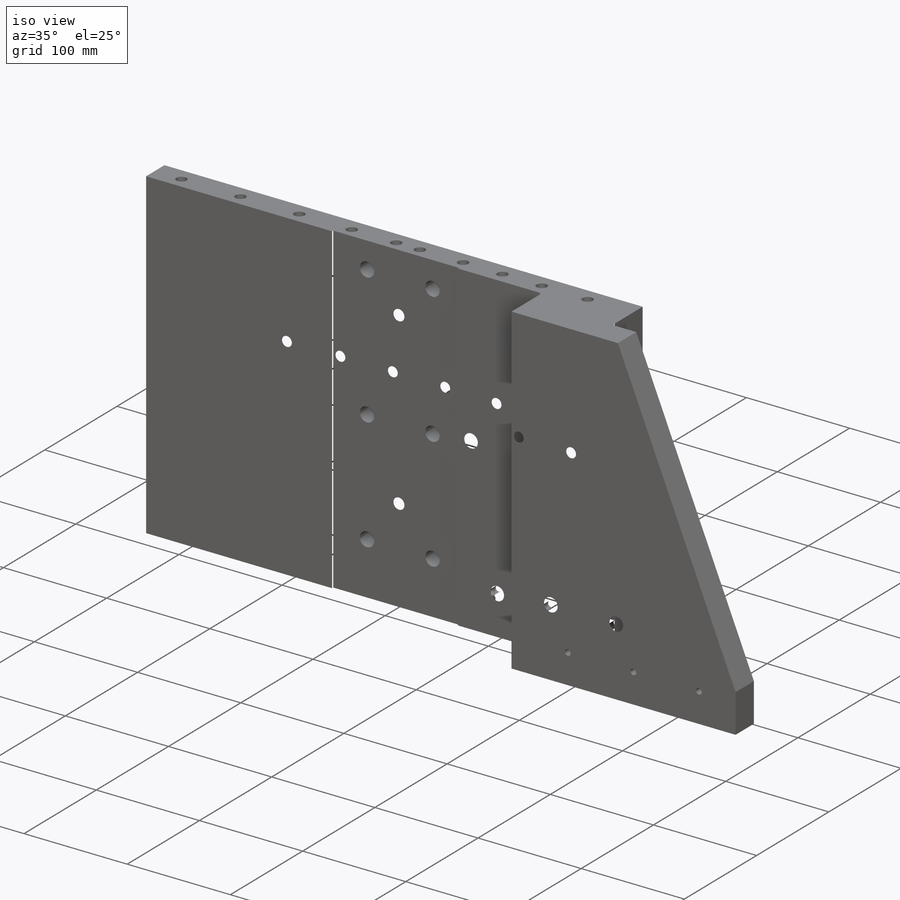
[diagram: iso view]
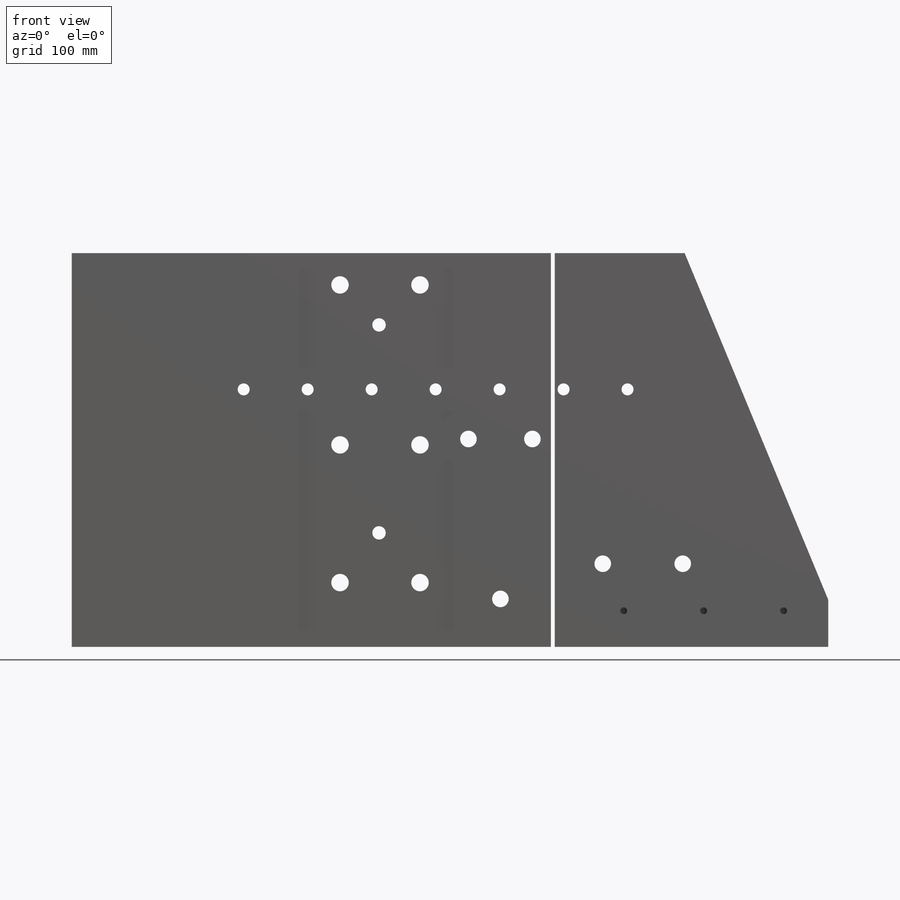
[diagram: front view]
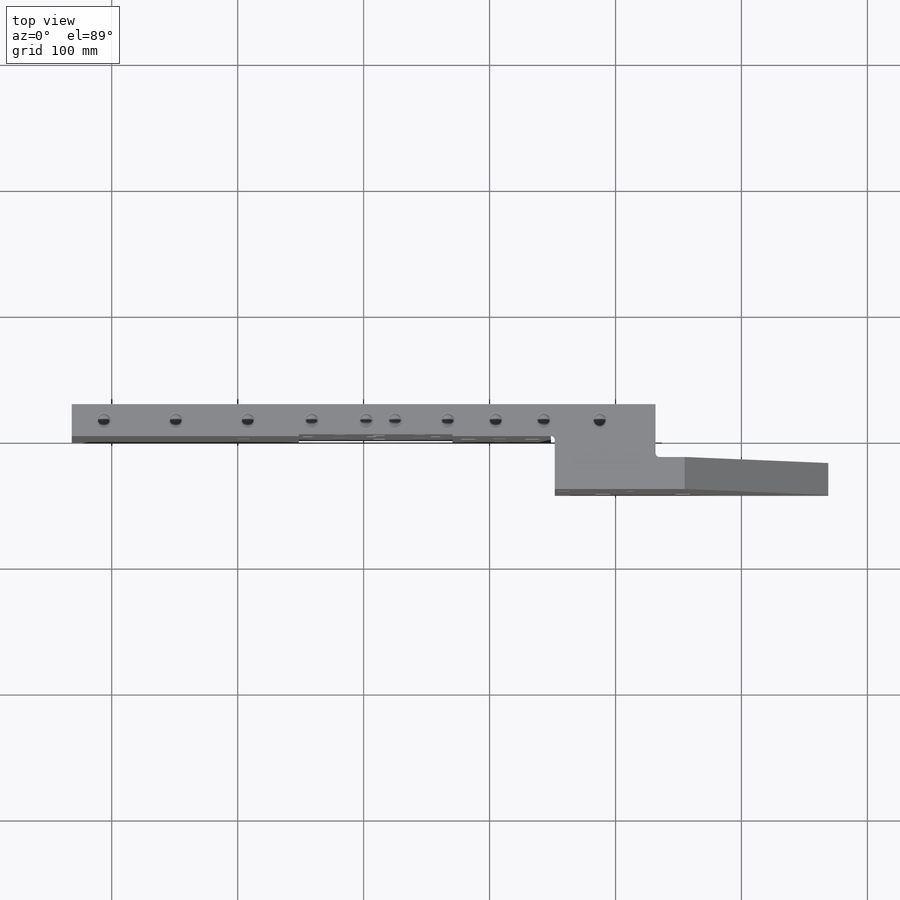
[diagram: top view]
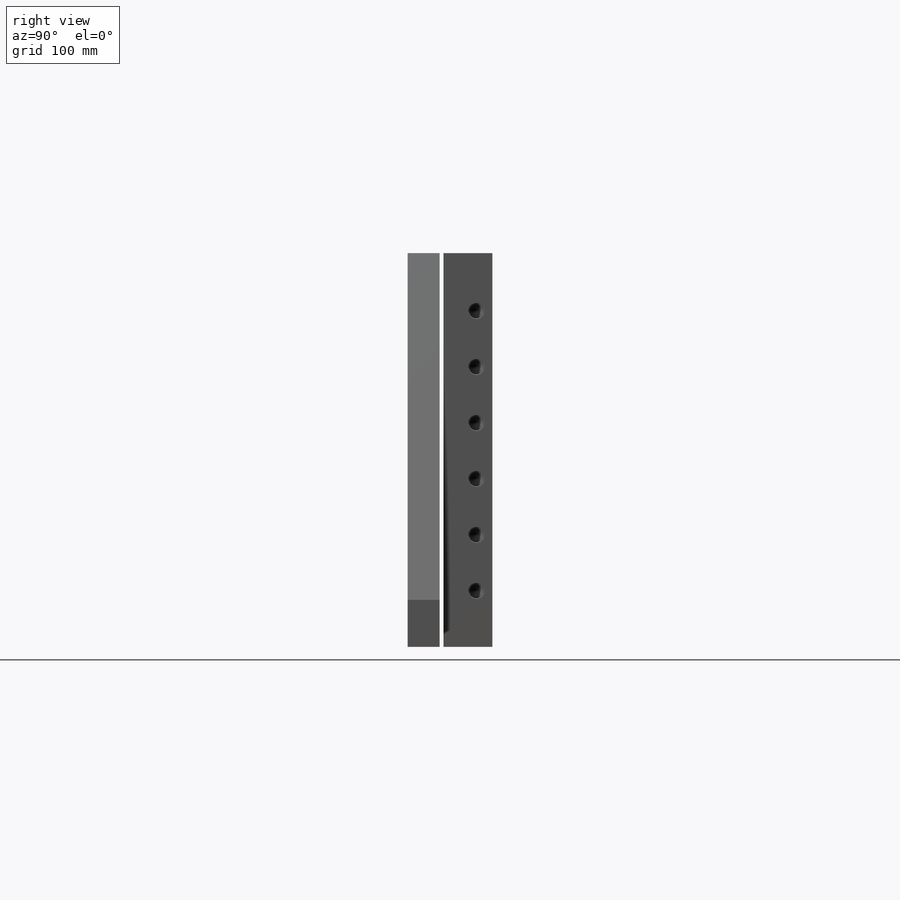
[diagram: right view]
SOLIDWORKS PART (.sldprt)
format: sldprt  version: not decoded by parser v0  size: 1,246,720 bytes
history: native  units: mm
features: sketch x32, hole x14, cut_extrude x3, material x1, extrude x1, chamfer x1, fillet x1 + 1 further entry (+14 scaffold rows collapsed)
feature tree (68):
  scaffold x14  (default folders/planes/origin — collapsed)
  material  "6061-T6 Al"
  "Origin"  ID=-1
  sketch  "Sketch1"  dims[c1.D1=25.4mm c1.D2=463.55mm c1.D3=~11.680851mm c2.D1=25.4mm c2.D2=463.55mm c2.D3=80.01mm c2.D4=217.17mm c2.D5=67.31mm c2.D6=25.4mm]
  extrude  "Extrude1"  Depth=312.674mm
  sketch  "Sketch2"  dims[c1.D1=37.338mm c1.D2=312.674mm c2.D2=157.5deg]
  cut_extrude  "Extrude2"  [1 undecoded]
  hole  "Bottom Holes 3/8-16 Tapped Hole1"  Diameter=7.9375mm Depth=31.75mm
  sketch  "Sketch4"  dims[c1.D1=19.05mm c1.D2=58.42mm c1.D3=58.42mm c1.D4=50.8mm c1.D5=58.42mm c1.D6=58.42mm c1.D7=58.42mm c1.D8=76.2mm c1.D9=63.5mm c1.D10=63.5mm c2.D3=25.4mm c2.D5=88.9mm c2.D2=139.7mm c2.D4=182.88mm c2.D6=205.74mm c2.D7=266.7mm c2.D8=323.85mm c2.D11=381.0mm c2.D12=438.15mm]
  sketch  "Sketch3"  dims[hole-wizard template sketch: 27 standard entries collapsed; hole parameters kept: c8.Tap Drill Depth=31.75mm c8.Thread Major Dia.=9.525mm c8.Thread Depth=25.4mm c8.Near C'Sink Dia.=10.795mm c8.D6=~4.399409mm c8.Near C'Sink Angle=120.0deg c8.D7=~14.816244mm c8.Drill Angle=118.0deg]
  hole  "Top Holes 3/8-16 Tapped Hole2"  Diameter=7.9375mm Depth=31.75mm
  sketch  "Sketch6"  dims[c1.D1=44.45mm c1.D2=88.9mm c1.D3=165.1mm c1.D4=207.01mm c1.D5=230.632mm c1.D6=229.87mm c1.D7=273.05mm c1.D8=323.85mm c1.D9=381.0mm c2.D5=438.15mm c2.D10=127.0mm]
  sketch  "Sketch5"  dims[hole-wizard template sketch: 27 standard entries collapsed; hole parameters kept: c8.Tap Drill Depth=31.75mm c8.Thread Major Dia.=9.525mm c8.Thread Depth=25.4mm c8.Near C'Sink Dia.=11.684mm c8.D6=~4.399409mm c8.Near C'Sink Angle=120.0deg c8.D7=~14.816244mm c8.Drill Angle=118.0deg]
  hole  "Top Vent Holes 7/32 (0.21875) Diameter Hole1"  Diameter=5.55625mm Depth=12.7mm
  sketch  "Sketch8"  dims[c1.D1=28.575mm c1.D2=28.575mm c1.D3=~26.446296mm c1.D4=44.45mm c1.D5=88.9mm c1.D6=165.1mm c1.D7=207.01mm c1.D8=273.05mm c1.D9=323.85mm c1.D10=381.0mm c2.D3=438.15mm c2.D11=19.05mm c2.D12=58.42mm c2.D13=58.42mm c2.D14=50.8mm c2.D15=58.42mm c2.D16=58.42mm c2.D17=58.42mm c2.D18=76.2mm c2.D2=28.575mm c3.D11=25.4mm c3.D12=88.9mm c3.D13=139.7mm c3.D14=182.88mm c3.D15=205.74mm c3.D16=266.7mm c3.D17=323.85mm c3.D18=438.15mm c3.D19=381.0mm c3.D20=127.0mm c3.D21=229.87mm]
  sketch  "Sketch7"  dims[hole-wizard template sketch: 47 standard entries collapsed; hole parameters kept: c15.Hole Depth=12.7mm c15.D3=~14.816244mm c15.Drill Angle=118.0deg]
  hole  " leg vent holes 7/32 (0.21875) Diameter Hole2"  Diameter=5.55625mm Depth=12.7mm
  sketch  "Sketch10"  dims[D1=28.575mm D2=63.5mm D3=63.5mm D4=54.61mm]
  sketch  "Sketch9"  dims[hole-wizard template sketch: 47 standard entries collapsed; hole parameters kept: c15.Hole Depth=12.7mm c15.D3=~14.816244mm c15.Drill Angle=118.0deg]
  hole  "door tapped holes 3/8-16 Tapped Hole3"  Diameter=10.0838mm Depth=31.75mm
  sketch  "Sketch12"  dims[c1.D1=12.7mm c1.D2=44.45mm c1.D3=88.9mm c1.D4=152.4mm c1.D5=215.9mm c1.D6=266.7mm c1.D7=177.8mm c2.D2=44.45mm c2.D3=266.7mm c2.D4=44.45mm c2.D5=44.45mm c2.D6=44.45mm c2.D7=44.45mm]
  sketch  "Sketch11"  dims[hole-wizard template sketch: 27 standard entries collapsed; hole parameters kept: c8.Tap Drill Depth=31.75mm c8.Thread Major Dia.=~11.68908mm c8.Thread Depth=25.4mm c8.Near C'Sink Dia.=12.7mm c8.D6=~4.399409mm c8.Near C'Sink Angle=120.0deg c8.D7=~14.816244mm c8.Drill Angle=118.0deg]
  hole  "door vent holes 7/32 (0.21875) Diameter Hole3"  Diameter=5.55625mm Depth=7.6581mm
  sketch  "Sketch15"  dims[c1.D1=28.575mm c1.D2=31.75mm c1.D3=88.9mm c1.D4=152.4mm c1.D5=215.9mm c1.D6=266.7mm c2.D2=44.45mm c2.D3=88.9mm c2.D4=133.35mm c2.D5=177.8mm c2.D6=222.25mm c2.D7=266.7mm]
  sketch  "Sketch14"  dims[hole-wizard template sketch: 60 standard entries collapsed; hole parameters kept: c18.Thru Hole Depth=7.6581mm]
  sketch  "Sketch13"  dims[D2=6.35mm D5=~4.77139mm D1=44.45mm D3=50.8mm D4=5.08mm]
  cut_extrude  " dowel slot Extrude3"  Depth=19.05mm
  chamfer  "dowel slot Chamfer1"  Distance=2.286mm Angle=45deg
  hole  "dowel hole 3/8 (0.375) Diameter Hole1"  Diameter=9.54278mm Depth=19.05mm
  sketch  "Sketch17"  dims[D1=50.8mm D2=12.7mm]
  sketch  "Sketch16"  dims[hole-wizard template sketch: 45 standard entries collapsed; hole parameters kept: c14.Drill Angle=90.0deg]
  hole  "Bracket holes CBORE for 1/2 Socket Head Cap Screw1"  Diameter=13.89126mm Depth=67.31mm
  sketch  "Sketch20"  dims[c1.D1=288.925mm c1.D2=52.578mm c1.D3=52.578mm c1.D4=288.925mm c1.D5=63.5mm c1.D6=63.5mm c1.D7=187.0202mm c1.D8=187.0202mm c2.D7=196.5198mm c2.D8=196.5198mm c3.D7=187.0202mm c3.D8=187.0202mm c3.D1=211.5058mm c3.D2=63.5mm c3.D3=109.347mm c3.D4=25.273mm c4.D1=187.0202mm c4.D4=51.054mm c4.D5=287.401mm c4.D3=160.401mm]
  sketch  "Sketch19"  dims[hole-wizard template sketch: 41 standard entries collapsed; hole parameters kept: c12.Thru Hole Dia.=~13.89126mm c12.Thru Hole Depth=67.31mm c12.C'Bore Dia.=26.9748mm c12.C'Bore Depth=9.652mm]
  sketch  "Sketch18"  dims[c1.D5=6.35mm c1.D6=6.35mm c1.D8=6.35mm c1.D11=6.35mm c1.D12=6.35mm c1.D1=121.92mm c1.D2=6.223mm c1.D3=15.748mm c1.D4=81.28mm c2.D5=~7.922904mm c2.D7=~11.778845mm c2.D8=~7.537601mm c2.D9=6.35mm c2.D10=~16.008163mm c2.D12=~88.996915mm c3.D5=90.0deg c3.D7=90.0deg c3.D8=90.0deg c3.D9=90.0deg c3.D10=90.0deg]
  cut_extrude  "Bracket Pocket Extrude4"  Depth=1.524mm
  hole  "bracket Pin Holes 3/8 (0.375) Diameter Hole2"  Diameter=9.525mm Depth=19.05mm
  sketch  "Sketch22"  dims[D1=219.5322mm D2=57.023mm D3=222.123mm]
  sketch  "Sketch21"  dims[hole-wizard template sketch: 29 standard entries collapsed; hole parameters kept: c8.C'Bore Depth=3.302mm c8.Near C'Sink Dia.=10.668mm c8.D6=~4.399409mm c8.Near C'Sink Angle=90.0deg c8.D7=~14.816244mm c8.Drill Angle=90.0deg]
  fillet  "Fillet1"  Radius=3.048mm
  hole  "9/32 (0.28125) Diameter Hole2"  Diameter=7.14375mm Depth=23.876mm
  sketch  "Sketch24"
  sketch  "Sketch23"  dims[hole-wizard template sketch: 60 standard entries collapsed; hole parameters kept: c18.Thru Hole Depth=23.876mm]
  hole  "3/8-16 Tapped Hole1"  Diameter=9.525mm Depth=67.31mm
  sketch  "Sketch26"  dims[D1=108.204mm D2=22.225mm D3=73.025mm D4=123.825mm D5=174.625mm D6=225.425mm D7=276.225mm D8=327.025mm D9=377.825mm]
  sketch  "Sketch25"  dims[hole-wizard template sketch: 54 standard entries collapsed; hole parameters kept: c17.Thread Major Dia.=9.525mm c17.Thru Tap Drill Depth=67.31mm c17.Near C'Sink Dia.=11.684mm c17.D4=~3.666174mm c17.Near C'Sink Angle=120.0deg]
  hole  "9/32 (0.28125) Diameter Hole1"  Diameter=7.14375mm Depth=7.92861mm
  sketch  "3DSketch1"  dims[D1=15.24mm D2=50.8mm D3=50.8mm]
  sketch  "Sketch27"  dims[hole-wizard template sketch: 60 standard entries collapsed; hole parameters kept: c18.Thru Hole Depth=~7.92861mm]
  hole  "Tapped Hole for 3/8-16 Helicoil1"  Diameter=10.0838mm Depth=67.31mm
  sketch  "Sketch29"  dims[D1=101.6mm D2=38.1mm D3=66.04mm D4=66.04mm]
  sketch  "Sketch28"  dims[hole-wizard template sketch: 42 standard entries collapsed; hole parameters kept: c12.Thru Tap Drill Depth=67.31mm c12.Thread Major Dia.=~11.68908mm c12.Thread Depth=22.86mm c12.Near C'Sink Dia.=13.208mm c12.D6=~4.399409mm c12.Near C'Sink Angle=120.0deg]
  hole  "Tapped Hole for 3/8-16 Helicoil2"  Diameter=10.0838mm Depth=25.4mm
  sketch  "Sketch31"  dims[D1=38.1mm D2=127.0mm D3=25.4mm D4=50.8mm D5=127.0mm D6=~17.757044mm]
  sketch  "Sketch30"  dims[hole-wizard template sketch: 42 standard entries collapsed; hole parameters kept: c12.Thru Tap Drill Depth=25.4mm c12.Thread Major Dia.=~11.68908mm c12.Thread Depth=22.86mm c12.Near C'Sink Dia.=13.208mm c12.D6=~4.399409mm c12.Near C'Sink Angle=120.0deg]
decode coverage: 50 of 52 modeling features carry decoded parameters; 1 rows unclassified (native names shown)
note: ~ marks probable driven/reference dimensions
note: 1 parameter value undecoded
summary: Diameter pulled from absorbed wizard sketch
note: suppression state not decoded; provenance and decode notes live in map.json
